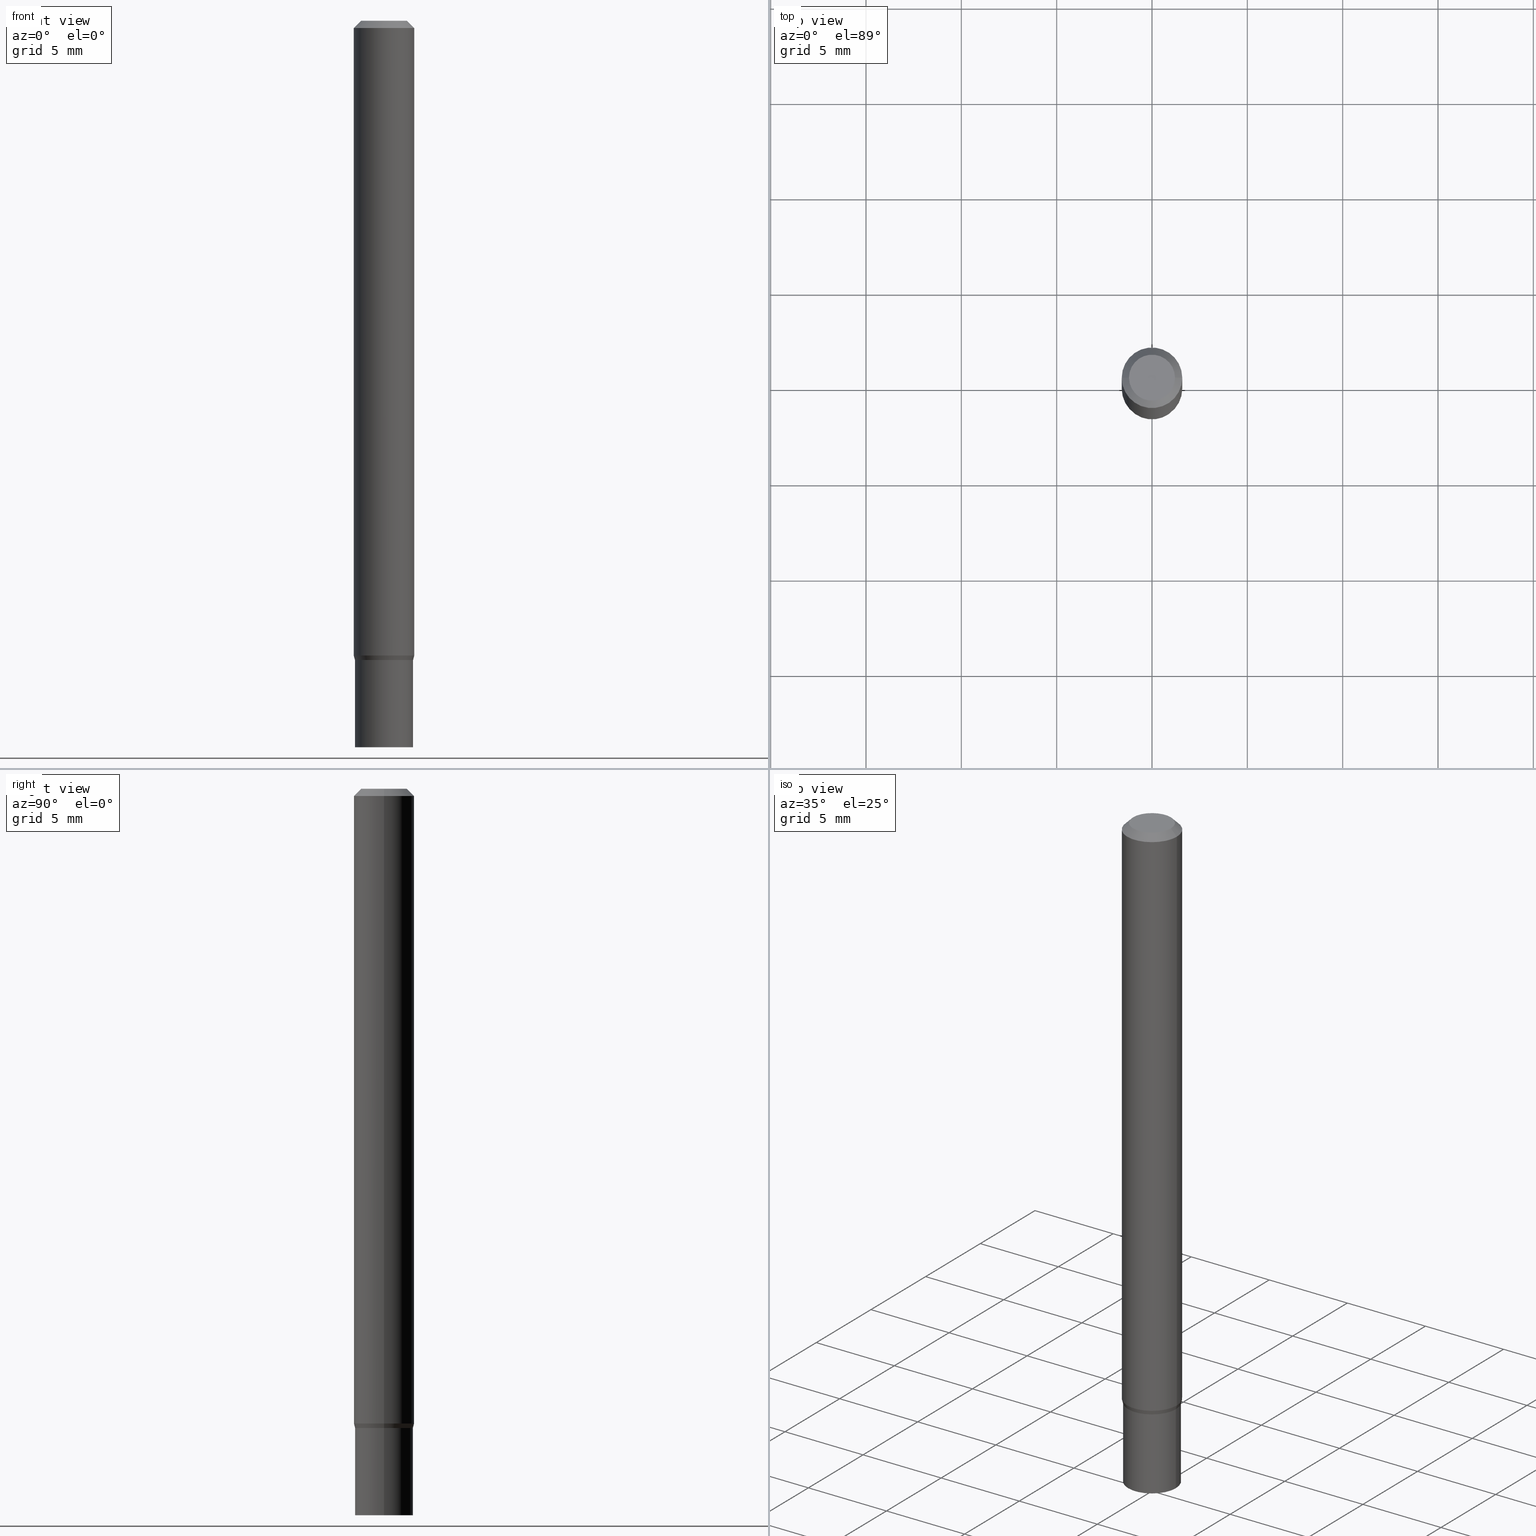
[diagram: canonical four-view strip — front | top / right | iso, engineering-drawing reading convention]
A machine part, canonical four-view strip (front | top / right | iso — engineering-drawing reading convention). The complete STEP part file that produces these views, byte-faithful:
ISO-10303-21;
HEADER;
FILE_DESCRIPTION (( 'STEP AP203' ),
    '1' );
FILE_NAME ('04110.STEP',
    '2024-03-14T17:00:56',
    ( '' ),
    ( '' ),
    'SwSTEP 2.0',
    'SolidWorks 2023',
    '' );
FILE_SCHEMA (( 'CONFIG_CONTROL_DESIGN' ));
ENDSEC;

DATA;
#1 = CARTESIAN_POINT ( 'NONE',  ( 0.05999999999999999778, -4.189777606611760421E-16, 2.925706065477561756E-30 ) ) ;
#2 = EDGE_LOOP ( 'NONE', ( #299, #328, #148, #464 ) ) ;
#3 = AXIS2_PLACEMENT_3D ( 'NONE', #29, #356, #354 ) ;
#4 = DIRECTION ( 'NONE',  ( 1.000000000000000000, -6.982962677686259611E-15, 0.000000000000000000 ) ) ;
#5 = ORIENTED_EDGE ( 'NONE', *, *, #355, .F. ) ;
#6 = EDGE_CURVE ( 'NONE', #403, #44, #155, .T. ) ;
#7 = EDGE_LOOP ( 'NONE', ( #180, #454, #118, #315 ) ) ;
#8 = PERSON_AND_ORGANIZATION ( #447, #16 ) ;
#9 = DIRECTION ( 'NONE',  ( 1.000000000000000000, -6.982962677686268288E-15, 0.000000000000000000 ) ) ;
#10 = AXIS2_PLACEMENT_3D ( 'NONE', #438, #114, #263 ) ;
#11 = ADVANCED_FACE ( 'NONE', ( #152 ), #188, .T. ) ;
#12 = AXIS2_PLACEMENT_3D ( 'NONE', #340, #301, #154 ) ;
#13 = ORIENTED_EDGE ( 'NONE', *, *, #329, .F. ) ;
#14 = COORDINATED_UNIVERSAL_TIME_OFFSET ( 5, 0, .BEHIND. ) ;
#15 = LINE ( 'NONE', #320, #352 ) ;
#16 = ORGANIZATION ( 'UNSPECIFIED', 'UNSPECIFIED', '' ) ;
#17 = CARTESIAN_POINT ( 'NONE',  ( 0.05999999999999999778, -5.656199768925894810E-15, -1.500000000000000222 ) ) ;
#18 = VECTOR ( 'NONE', #25, 39.37007874015748854 ) ;
#19 = LINE ( 'NONE', #126, #18 ) ;
#20 = ORIENTED_EDGE ( 'NONE', *, *, #359, .T. ) ;
#21 = DATE_AND_TIME ( #240, #74 ) ;
#22 = DIRECTION ( 'NONE',  ( 1.000000000000000000, -6.982962677686268288E-15, 0.000000000000000000 ) ) ;
#23 = AXIS2_PLACEMENT_3D ( 'NONE', #431, #116, #113 ) ;
#24 = EDGE_LOOP ( 'NONE', ( #434, #420, #392, #435 ) ) ;
#25 = DIRECTION ( 'NONE',  ( -0.7071067811869518049, 7.493145998871813553E-15, 0.7071067811861430075 ) ) ;
#26 = EDGE_LOOP ( 'NONE', ( #38, #369, #83, #242 ) ) ;
#27 = EDGE_CURVE ( 'NONE', #217, #466, #271, .T. ) ;
#28 = FACE_OUTER_BOUND ( 'NONE', #26, .T. ) ;
#29 = CARTESIAN_POINT ( 'NONE',  ( 3.668203209277705088E-31, -5.237222008264718399E-17, -0.01499999999999999944 ) ) ;
#30 = FACE_OUTER_BOUND ( 'NONE', #41, .T. ) ;
#31 = ADVANCED_FACE ( 'NONE', ( #189 ), #296, .F. ) ;
#32 = DIRECTION ( 'NONE',  ( 0.7071067811869518049, -2.468850131086492060E-15, 0.7071067811861430075 ) ) ;
#33 = ORIENTED_EDGE ( 'NONE', *, *, #139, .T. ) ;
#34 = CARTESIAN_POINT ( 'NONE',  ( 0.000000000000000000, 0.000000000000000000, 0.000000000000000000 ) ) ;
#35 = ORIENTED_EDGE ( 'NONE', *, *, #159, .T. ) ;
#36 = ORIENTED_EDGE ( 'NONE', *, *, #219, .T. ) ;
#37 = APPROVAL_ROLE ( '' ) ;
#38 = ORIENTED_EDGE ( 'NONE', *, *, #64, .F. ) ;
#39 = VECTOR ( 'NONE', #411, 39.37007874015748143 ) ;
#40 = CARTESIAN_POINT ( 'NONE',  ( -0.05949999999999999734, -4.183333212321580856E-15, -1.319999999999999840 ) ) ;
#41 = EDGE_LOOP ( 'NONE', ( #290, #451 ) ) ;
#42 = CARTESIAN_POINT ( 'NONE',  ( -0.05999999999999999778, 4.263256414560600957E-16, -2.951361054152943413E-30 ) ) ;
#43 = AXIS2_PLACEMENT_3D ( 'NONE', #362, #111, #334 ) ;
#44 = VERTEX_POINT ( 'NONE', #218 ) ;
#45 = EDGE_CURVE ( 'NONE', #279, #430, #388, .T. ) ;
#46 = DIRECTION ( 'NONE',  ( -2.445468806185136597E-29, 3.491481338843145583E-15, 1.000000000000000000 ) ) ;
#47 = AXIS2_PLACEMENT_3D ( 'NONE', #378, #200, #345 ) ;
#48 = CALENDAR_DATE ( 2024, 14, 3 ) ;
#49 = DIRECTION ( 'NONE',  ( -2.445468806185136597E-29, 3.491481338843145583E-15, 1.000000000000000000 ) ) ;
#50 = CYLINDRICAL_SURFACE ( 'NONE', #294, 0.06250000000000000000 ) ;
#51 = LOCAL_TIME ( 13, 0, 56.00000000000000000, #14 ) ;
#52 = ADVANCED_FACE ( 'NONE', ( #405 ), #85, .T. ) ;
#53 = DIRECTION ( 'NONE',  ( -2.445468806185136597E-29, 3.491481338843145583E-15, 1.000000000000000000 ) ) ;
#54 = VECTOR ( 'NONE', #32, 39.37007874015748854 ) ;
#55 = PERSON_AND_ORGANIZATION ( #447, #16 ) ;
#56 = DIRECTION ( 'NONE',  ( 1.000000000000000000, -6.982962677686261189E-15, 0.000000000000000000 ) ) ;
#57 = ORIENTED_EDGE ( 'NONE', *, *, #343, .F. ) ;
#58 = CARTESIAN_POINT ( 'NONE',  ( -0.05999999999999993533, -4.182429725816892736E-15, -1.320000000000000062 ) ) ;
#59 = EDGE_CURVE ( 'NONE', #363, #117, #364, .T. ) ;
#60 = ORIENTED_EDGE ( 'NONE', *, *, #121, .F. ) ;
#61 = CARTESIAN_POINT ( 'NONE',  ( 0.06250000000000000000, -5.012614570252739972E-15, -1.310669872981077733 ) ) ;
#62 = AXIS2_PLACEMENT_3D ( 'NONE', #274, #280, #232 ) ;
#63 = CARTESIAN_POINT ( 'NONE',  ( 0.000000000000000000, 0.000000000000000000, 0.000000000000000000 ) ) ;
#64 = EDGE_CURVE ( 'NONE', #44, #337, #440, .T. ) ;
#65 = CARTESIAN_POINT ( 'NONE',  ( 3.228018824164380442E-29, -4.608755367272952437E-15, -1.320000000000000062 ) ) ;
#66 = DIRECTION ( 'NONE',  ( -2.445468806185136597E-29, 3.491481338843145583E-15, 1.000000000000000000 ) ) ;
#67 = ORIENTED_EDGE ( 'NONE', *, *, #121, .T. ) ;
#68 = DIRECTION ( 'NONE',  ( 1.000000000000000000, -6.982962677686266711E-15, 0.000000000000000000 ) ) ;
#69 = AXIS2_PLACEMENT_3D ( 'NONE', #376, #199, #170 ) ;
#70 = ORIENTED_EDGE ( 'NONE', *, *, #407, .F. ) ;
#71 = ORIENTED_EDGE ( 'NONE', *, *, #423, .F. ) ;
#72 = CC_DESIGN_APPROVAL ( #452, ( #398 ) ) ;
#73 = EDGE_CURVE ( 'NONE', #337, #361, #214, .T. ) ;
#74 = LOCAL_TIME ( 13, 0, 56.00000000000000000, #198 ) ;
#75 = CARTESIAN_POINT ( 'NONE',  ( 0.000000000000000000, 0.000000000000000000, 0.000000000000000000 ) ) ;
#76 = DIRECTION ( 'NONE',  ( -2.438088387897960049E-29, 3.491481338843145188E-15, 1.000000000000000000 ) ) ;
#77 = DIRECTION ( 'NONE',  ( -2.445468806185136877E-29, 3.491481338843145188E-15, 1.000000000000000000 ) ) ;
#78 = DIRECTION ( 'NONE',  ( 1.000000000000000000, -6.982962677686259611E-15, 0.000000000000000000 ) ) ;
#79 = CALENDAR_DATE ( 2024, 14, 3 ) ;
#80 = CC_DESIGN_PERSON_AND_ORGANIZATION_ASSIGNMENT ( #55, #86, ( #98 ) ) ;
#81 = ORIENTED_EDGE ( 'NONE', *, *, #412, .F. ) ;
#82 = ADVANCED_BREP_SHAPE_REPRESENTATION ( '04110', ( #264, #426, #158 ), #443 ) ;
#83 = ORIENTED_EDGE ( 'NONE', *, *, #149, .T. ) ;
#84 = EDGE_LOOP ( 'NONE', ( #253, #71 ) ) ;
#85 = CONICAL_SURFACE ( 'NONE', #12, 0.05999999999999993533, 0.2617993877991513507 ) ;
#86 = PERSON_AND_ORGANIZATION_ROLE ( 'design_supplier' ) ;
#87 = DIRECTION ( 'NONE',  ( -2.445468806185136597E-29, 3.491481338843145583E-15, 1.000000000000000000 ) ) ;
#88 = EDGE_CURVE ( 'NONE', #44, #403, #324, .T. ) ;
#89 = FACE_OUTER_BOUND ( 'NONE', #166, .T. ) ;
#90 = APPROVAL_PERSON_ORGANIZATION ( #8, #313, #441 ) ;
#91 = PERSON_AND_ORGANIZATION_ROLE ( 'creator' ) ;
#92 = CYLINDRICAL_SURFACE ( 'NONE', #145, 0.05999999999999999778 ) ;
#93 = ORIENTED_EDGE ( 'NONE', *, *, #95, .T. ) ;
#94 = CARTESIAN_POINT ( 'NONE',  ( 3.226796089761288762E-29, -4.607009626603530934E-15, -1.319500000000000117 ) ) ;
#95 = EDGE_CURVE ( 'NONE', #96, #266, #417, .T. ) ;
#96 = VERTEX_POINT ( 'NONE', #317 ) ;
#97 = CARTESIAN_POINT ( 'NONE',  ( -0.06000000000000019901, -4.180683985147469655E-15, -1.319500000000000117 ) ) ;
#98 = PRODUCT_DEFINITION_FORMATION_WITH_SPECIFIED_SOURCE ( 'ANY', '', #190, .NOT_KNOWN. ) ;
#99 = CYLINDRICAL_SURFACE ( 'NONE', #254, 0.05999999999999999778 ) ;
#100 = CLOSED_SHELL ( 'NONE', ( #257, #209, #11, #202, #52, #302, #248, #273, #297, #31, #428, #395 ) ) ;
#101 = CYLINDRICAL_SURFACE ( 'NONE', #208, 0.06250000000000000000 ) ;
#102 = DIRECTION ( 'NONE',  ( 1.000000000000000000, -6.982962677686259611E-15, 0.000000000000000000 ) ) ;
#103 = DIRECTION ( 'NONE',  ( -2.445468806185136597E-29, 3.491481338843145583E-15, 1.000000000000000000 ) ) ;
#104 = ORIENTED_EDGE ( 'NONE', *, *, #329, .T. ) ;
#105 = DIRECTION ( 'NONE',  ( -2.445468806185136597E-29, 3.491481338843145583E-15, 1.000000000000000000 ) ) ;
#106 = AXIS2_PLACEMENT_3D ( 'NONE', #465, #245, #144 ) ;
#107 = ORIENTED_EDGE ( 'NONE', *, *, #182, .F. ) ;
#108 = EDGE_CURVE ( 'NONE', #130, #196, #163, .T. ) ;
#109 = PERSON_AND_ORGANIZATION_ROLE ( 'design_owner' ) ;
#110 = DIRECTION ( 'NONE',  ( -2.445468806185136597E-29, 3.491481338843145583E-15, 1.000000000000000000 ) ) ;
#111 = DIRECTION ( 'NONE',  ( -2.445468806185136597E-29, 3.491481338843145583E-15, 1.000000000000000000 ) ) ;
#112 = DIRECTION ( 'NONE',  ( -2.445468806185136597E-29, 3.491481338843145583E-15, 1.000000000000000000 ) ) ;
#113 = DIRECTION ( 'NONE',  ( 1.000000000000000000, -6.982962677686261189E-15, 0.000000000000000000 ) ) ;
#114 = DIRECTION ( 'NONE',  ( -2.445468806185136597E-29, 3.491481338843145583E-15, 1.000000000000000000 ) ) ;
#115 = CONICAL_SURFACE ( 'NONE', #238, 0.05999999999999993533, 0.2617993877991513507 ) ;
#116 = DIRECTION ( 'NONE',  ( -2.445468806185136597E-29, 3.491481338843145583E-15, 1.000000000000000000 ) ) ;
#117 = VERTEX_POINT ( 'NONE', #344 ) ;
#118 = ORIENTED_EDGE ( 'NONE', *, *, #459, .T. ) ;
#119 = PERSON_AND_ORGANIZATION ( #447, #16 ) ;
#120 = DIRECTION ( 'NONE',  ( 1.000000000000000000, -6.982962677686259611E-15, 0.000000000000000000 ) ) ;
#121 = EDGE_CURVE ( 'NONE', #266, #96, #278, .T. ) ;
#122 = AXIS2_PLACEMENT_3D ( 'NONE', #204, #49, #120 ) ;
#123 = APPROVAL_DATE_TIME ( #21, #313 ) ;
#124 = FACE_OUTER_BOUND ( 'NONE', #269, .T. ) ;
#125 = DATE_TIME_ROLE ( 'classification_date' ) ;
#126 = CARTESIAN_POINT ( 'NONE',  ( -0.05949999999999999734, -4.185982439495692057E-15, -1.319999999999999840 ) ) ;
#127 = EDGE_LOOP ( 'NONE', ( #93, #67 ) ) ;
#128 = APPROVAL_STATUS ( 'not_yet_approved' ) ;
#129 = LINE ( 'NONE', #132, #39 ) ;
#130 = VERTEX_POINT ( 'NONE', #444 ) ;
#131 = AXIS2_PLACEMENT_3D ( 'NONE', #94, #87, #56 ) ;
#132 = CARTESIAN_POINT ( 'NONE',  ( 0.06250000000000000000, -4.364351673553916694E-16, 3.047610484872459871E-30 ) ) ;
#133 = CIRCLE ( 'NONE', #223, 0.06250000000000000000 ) ;
#134 = EDGE_LOOP ( 'NONE', ( #60, #20, #333, #239 ) ) ;
#135 = AXIS2_PLACEMENT_3D ( 'NONE', #63, #210, #353 ) ;
#136 = DIRECTION ( 'NONE',  ( 1.000000000000000000, -6.982962677686265922E-15, 4.876176775795935793E-29 ) ) ;
#137 = CC_DESIGN_APPROVAL ( #313, ( #98 ) ) ;
#138 = LINE ( 'NONE', #424, #410 ) ;
#139 = EDGE_CURVE ( 'NONE', #466, #217, #433, .T. ) ;
#140 = AXIS2_PLACEMENT_3D ( 'NONE', #289, #288, #327 ) ;
#141 = CARTESIAN_POINT ( 'NONE',  ( 0.06000000000000019901, -5.025987387264708356E-15, -1.319500000000000117 ) ) ;
#142 = CARTESIAN_POINT ( 'NONE',  ( 0.04749999999999999362, -4.035134999187581581E-16, -1.989643822619502098E-16 ) ) ;
#143 = EDGE_CURVE ( 'NONE', #96, #117, #15, .T. ) ;
#144 = DIRECTION ( 'NONE',  ( 1.000000000000000000, -6.982962677686266711E-15, 4.876176775795935232E-29 ) ) ;
#145 = AXIS2_PLACEMENT_3D ( 'NONE', #237, #311, #448 ) ;
#146 = CARTESIAN_POINT ( 'NONE',  ( 3.668203209277705088E-31, -5.237222008264718399E-17, -0.01499999999999999944 ) ) ;
#147 = APPLICATION_PROTOCOL_DEFINITION ( 'international standard', 'config_control_design', 1994, #402 ) ;
#148 = ORIENTED_EDGE ( 'NONE', *, *, #175, .F. ) ;
#149 = EDGE_CURVE ( 'NONE', #403, #361, #314, .T. ) ;
#150 = UNCERTAINTY_MEASURE_WITH_UNIT (LENGTH_MEASURE( 1.000000000000000082E-05 ), #437, 'distance_accuracy_value', 'NONE');
#151 = CALENDAR_DATE ( 2024, 14, 3 ) ;
#152 = FACE_OUTER_BOUND ( 'NONE', #134, .T. ) ;
#153 = FACE_OUTER_BOUND ( 'NONE', #326, .T. ) ;
#154 = DIRECTION ( 'NONE',  ( 1.000000000000000000, -6.982962677686259611E-15, 0.000000000000000000 ) ) ;
#155 = CIRCLE ( 'NONE', #425, 0.05999999999999993533 ) ;
#156 = COORDINATED_UNIVERSAL_TIME_OFFSET ( 5, 0, .BEHIND. ) ;
#157 = DIRECTION ( 'NONE',  ( 2.445468806185136597E-29, -3.491481338843145583E-15, -1.000000000000000000 ) ) ;
#158 = AXIS2_PLACEMENT_3D ( 'NONE', #75, #396, #365 ) ;
#159 = EDGE_CURVE ( 'NONE', #361, #363, #129, .T. ) ;
#160 = LINE ( 'NONE', #310, #338 ) ;
#161 = APPROVAL_DATE_TIME ( #276, #452 ) ;
#162 = DIRECTION ( 'NONE',  ( -0.7071067811865522357, 2.468850131082306364E-15, -0.7071067811865427988 ) ) ;
#163 = CIRCLE ( 'NONE', #221, 0.05999999999999999778 ) ;
#164 = DIRECTION ( 'NONE',  ( 1.000000000000000000, -6.982962677686262766E-15, 0.000000000000000000 ) ) ;
#165 = APPROVAL ( #255, 'UNSPECIFIED' ) ;
#166 = EDGE_LOOP ( 'NONE', ( #293, #36, #406, #13 ) ) ;
#167 = COORDINATED_UNIVERSAL_TIME_OFFSET ( 5, 0, .BEHIND. ) ;
#168 = DIRECTION ( 'NONE',  ( 1.000000000000000000, -6.982962677686267499E-15, 4.852736867747366768E-29 ) ) ;
#169 = ORIENTED_EDGE ( 'NONE', *, *, #108, .F. ) ;
#170 = DIRECTION ( 'NONE',  ( 1.000000000000000000, -6.982962677686267499E-15, 4.852736867747366768E-29 ) ) ;
#171 = AXIS2_PLACEMENT_3D ( 'NONE', #222, #46, #225 ) ;
#172 = CARTESIAN_POINT ( 'NONE',  ( 0.06250000000000000000, -4.888073874380388472E-16, -0.01499999999999999944 ) ) ;
#173 = DIMENSIONAL_EXPONENTS ( 1.000000000000000000, 0.000000000000000000, 0.000000000000000000, 0.000000000000000000, 0.000000000000000000, 0.000000000000000000, 0.000000000000000000 ) ;
#174 = DIRECTION ( 'NONE',  ( 0.7071067811865522357, -7.319954787623271823E-15, -0.7071067811865427988 ) ) ;
#175 = EDGE_CURVE ( 'NONE', #361, #337, #357, .T. ) ;
#176 = APPROVAL_PERSON_ORGANIZATION ( #119, #452, #234 ) ;
#177 = DIRECTION ( 'NONE',  ( 1.000000000000000000, -6.982962677686266711E-15, 4.876176775795935793E-29 ) ) ;
#178 = CONICAL_SURFACE ( 'NONE', #3, 0.06250000000000000000, 0.7853981633974549403 ) ;
#179 = CARTESIAN_POINT ( 'NONE',  ( 4.189777606612082375E-16, 0.05999999999999539035, -1.320000000000000506 ) ) ;
#180 = ORIENTED_EDGE ( 'NONE', *, *, #88, .F. ) ;
#181 = APPLICATION_CONTEXT ( 'configuration controlled 3d designs of mechanical parts and assemblies' ) ;
#182 = EDGE_CURVE ( 'NONE', #44, #348, #160, .T. ) ;
#183 = PLANE ( 'NONE',  #140 ) ;
#184 = ORIENTED_EDGE ( 'NONE', *, *, #139, .F. ) ;
#185 =( NAMED_UNIT ( * ) SI_UNIT ( $, .STERADIAN. ) SOLID_ANGLE_UNIT ( ) );
#186 = ORIENTED_EDGE ( 'NONE', *, *, #459, .F. ) ;
#187 = LINE ( 'NONE', #1, #316 ) ;
#188 = CONICAL_SURFACE ( 'NONE', #455, 0.06250000000000000000, 0.7853981633974549403 ) ;
#189 = FACE_OUTER_BOUND ( 'NONE', #84, .T. ) ;
#190 = PRODUCT ( '04110', '04110', '', ( #339 ) ) ;
#191 = DIRECTION ( 'NONE',  ( 1.000000000000000000, -6.982962677686265922E-15, 4.876176775795935793E-29 ) ) ;
#192 = EDGE_CURVE ( 'NONE', #403, #282, #270, .T. ) ;
#193 = CARTESIAN_POINT ( 'NONE',  ( 3.228018824164379882E-29, -4.608755367272951648E-15, -1.319999999999999840 ) ) ;
#194 = DIRECTION ( 'NONE',  ( -1.000000000000000000, 6.982962677686266711E-15, 0.000000000000000000 ) ) ;
#195 = APPLICATION_PROTOCOL_DEFINITION ( 'international standard', 'config_control_design', 1994, #181 ) ;
#196 = VERTEX_POINT ( 'NONE', #450 ) ;
#197 = EDGE_CURVE ( 'NONE', #282, #348, #312, .T. ) ;
#198 = COORDINATED_UNIVERSAL_TIME_OFFSET ( 5, 0, .BEHIND. ) ;
#199 = DIRECTION ( 'NONE',  ( -2.445468806185136597E-29, 3.491481338843145583E-15, 1.000000000000000000 ) ) ;
#200 = DIRECTION ( 'NONE',  ( -2.445468806185136597E-29, 3.491481338843145583E-15, 1.000000000000000000 ) ) ;
#201 = DIRECTION ( 'NONE',  ( -2.445468806185136877E-29, 3.491481338843145188E-15, 1.000000000000000000 ) ) ;
#202 = ADVANCED_FACE ( 'NONE', ( #241 ), #50, .T. ) ;
#203 = AXIS2_PLACEMENT_3D ( 'NONE', #193, #105, #4 ) ;
#204 = CARTESIAN_POINT ( 'NONE',  ( 3.228018824164380442E-29, -4.608755367272952437E-15, -1.320000000000000062 ) ) ;
#205 = DIRECTION ( 'NONE',  ( -2.445468806185136597E-29, 3.491481338843145583E-15, 1.000000000000000000 ) ) ;
#206 = ORIENTED_EDGE ( 'NONE', *, *, #27, .F. ) ;
#207 = CYLINDRICAL_SURFACE ( 'NONE', #106, 0.06000000000000006023 ) ;
#208 = AXIS2_PLACEMENT_3D ( 'NONE', #211, #323, #177 ) ;
#209 = ADVANCED_FACE ( 'NONE', ( #89 ), #287, .T. ) ;
#210 = DIRECTION ( 'NONE',  ( -2.445468806185136597E-29, 3.491481338843145583E-15, 1.000000000000000000 ) ) ;
#211 = CARTESIAN_POINT ( 'NONE',  ( 0.000000000000000000, 0.000000000000000000, 0.000000000000000000 ) ) ;
#212 = DIRECTION ( 'NONE',  ( 1.000000000000000000, -6.982962677686268288E-15, 0.000000000000000000 ) ) ;
#213 = EDGE_LOOP ( 'NONE', ( #70, #228, #35, #5 ) ) ;
#214 = CIRCLE ( 'NONE', #331, 0.06250000000000000000 ) ;
#215 = AXIS2_PLACEMENT_3D ( 'NONE', #372, #110, #9 ) ;
#216 = DIRECTION ( 'NONE',  ( -2.445468806185136597E-29, 3.491481338843145583E-15, 1.000000000000000000 ) ) ;
#217 = VERTEX_POINT ( 'NONE', #17 ) ;
#218 = CARTESIAN_POINT ( 'NONE',  ( -0.05999999999999993533, -4.157259959432089605E-15, -1.320000000000000062 ) ) ;
#219 = EDGE_CURVE ( 'NONE', #430, #348, #19, .T. ) ;
#220 = PERSON_AND_ORGANIZATION ( #447, #16 ) ;
#221 = AXIS2_PLACEMENT_3D ( 'NONE', #456, #374, #342 ) ;
#222 = CARTESIAN_POINT ( 'NONE',  ( 3.228018824164379882E-29, -4.608755367272951648E-15, -1.319999999999999840 ) ) ;
#223 = AXIS2_PLACEMENT_3D ( 'NONE', #252, #216, #68 ) ;
#224 = DATE_TIME_ROLE ( 'creation_date' ) ;
#225 = DIRECTION ( 'NONE',  ( 1.000000000000000000, -6.982962677686259611E-15, 0.000000000000000000 ) ) ;
#226 = CIRCLE ( 'NONE', #23, 0.06000000000000019901 ) ;
#227 = LENGTH_MEASURE_WITH_UNIT ( LENGTH_MEASURE( 0.02539999999999999897 ), #332 );
#228 = ORIENTED_EDGE ( 'NONE', *, *, #73, .T. ) ;
#229 = CC_DESIGN_PERSON_AND_ORGANIZATION_ASSIGNMENT ( #303, #401, ( #286 ) ) ;
#230 = SECURITY_CLASSIFICATION_LEVEL ( 'unclassified' ) ;
#231 = CARTESIAN_POINT ( 'NONE',  ( 3.205202289581861151E-29, -4.576179402897349091E-15, -1.310669872981077733 ) ) ;
#232 = DIRECTION ( 'NONE',  ( 1.000000000000000000, -6.982962677686262766E-15, 0.000000000000000000 ) ) ;
#233 = ADVANCED_FACE ( 'NONE', ( #413 ), #92, .T. ) ;
#234 = APPROVAL_ROLE ( '' ) ;
#235 = DIRECTION ( 'NONE',  ( 0.2588190451025225713, 1.565188264969611712E-15, 0.9659258262890676461 ) ) ;
#236 = PERSON_AND_ORGANIZATION ( #447, #16 ) ;
#237 = CARTESIAN_POINT ( 'NONE',  ( 0.000000000000000000, 0.000000000000000000, 0.000000000000000000 ) ) ;
#238 = AXIS2_PLACEMENT_3D ( 'NONE', #285, #103, #102 ) ;
#239 = ORIENTED_EDGE ( 'NONE', *, *, #143, .F. ) ;
#240 = CALENDAR_DATE ( 2024, 14, 3 ) ;
#241 = FACE_OUTER_BOUND ( 'NONE', #418, .T. ) ;
#242 = ORIENTED_EDGE ( 'NONE', *, *, #73, .F. ) ;
#243 = FACE_OUTER_BOUND ( 'NONE', #213, .T. ) ;
#244 = ADVANCED_FACE ( 'NONE', ( #124 ), #99, .T. ) ;
#245 = DIRECTION ( 'NONE',  ( -2.445468806185136597E-29, 3.491481338843145583E-15, 1.000000000000000000 ) ) ;
#246 = AXIS2_PLACEMENT_3D ( 'NONE', #453, #53, #22 ) ;
#247 = FACE_OUTER_BOUND ( 'NONE', #24, .T. ) ;
#248 = ADVANCED_FACE ( 'NONE', ( #243 ), #101, .T. ) ;
#249 = DIRECTION ( 'NONE',  ( -1.000000000000000000, 6.982962677686265922E-15, -4.876176775795935793E-29 ) ) ;
#250 = ORIENTED_EDGE ( 'NONE', *, *, #219, .F. ) ;
#251 = CONICAL_SURFACE ( 'NONE', #43, 0.05949999999999999734, 0.7853981633980202659 ) ;
#252 = CARTESIAN_POINT ( 'NONE',  ( 3.668203209277705088E-31, -5.237222008264718399E-17, -0.01499999999999999944 ) ) ;
#253 = ORIENTED_EDGE ( 'NONE', *, *, #45, .F. ) ;
#254 = AXIS2_PLACEMENT_3D ( 'NONE', #34, #358, #325 ) ;
#255 = APPROVAL_STATUS ( 'not_yet_approved' ) ;
#256 = EDGE_LOOP ( 'NONE', ( #107, #442, #367, #399 ) ) ;
#257 = ADVANCED_FACE ( 'NONE', ( #463 ), #207, .F. ) ;
#258 = LOCAL_TIME ( 13, 0, 56.00000000000000000, #167 ) ;
#259 =( NAMED_UNIT ( * ) PLANE_ANGLE_UNIT ( ) SI_UNIT ( $, .RADIAN. ) );
#260 = ORIENTED_EDGE ( 'NONE', *, *, #449, .F. ) ;
#261 = APPROVAL_DATE_TIME ( #300, #165 ) ;
#262 = VECTOR ( 'NONE', #235, 39.37007874015748854 ) ;
#263 = DIRECTION ( 'NONE',  ( 1.000000000000000000, -6.982962677686266711E-15, 0.000000000000000000 ) ) ;
#264 = MANIFOLD_SOLID_BREP ( 'Body-Move/Copy2[1]', #400 ) ;
#265 = CC_DESIGN_PERSON_AND_ORGANIZATION_ASSIGNMENT ( #236, #383, ( #398 ) ) ;
#266 = VERTEX_POINT ( 'NONE', #142 ) ;
#267 = CC_DESIGN_APPROVAL ( #165, ( #286 ) ) ;
#268 = SHAPE_DEFINITION_REPRESENTATION ( #370, #82 ) ;
#269 = EDGE_LOOP ( 'NONE', ( #432, #318, #57, #260 ) ) ;
#270 = LINE ( 'NONE', #409, #373 ) ;
#271 = CIRCLE ( 'NONE', #215, 0.05999999999999999778 ) ;
#272 = DIRECTION ( 'NONE',  ( -0.2588190451025225713, 5.211531920934557353E-15, 0.9659258262890676461 ) ) ;
#273 = ADVANCED_FACE ( 'NONE', ( #247 ), #178, .T. ) ;
#274 = CARTESIAN_POINT ( 'NONE',  ( 3.205202289581861151E-29, -4.576179402897349091E-15, -1.310669872981077733 ) ) ;
#275 = ORIENTED_EDGE ( 'NONE', *, *, #159, .F. ) ;
#276 = DATE_AND_TIME ( #377, #51 ) ;
#277 = CARTESIAN_POINT ( 'NONE',  ( 0.05999999999999993533, -5.027733127934127493E-15, -1.320000000000000062 ) ) ;
#278 = CIRCLE ( 'NONE', #69, 0.04749999999999999362 ) ;
#279 = VERTEX_POINT ( 'NONE', #393 ) ;
#280 = DIRECTION ( 'NONE',  ( -2.445468806185136597E-29, 3.491481338843145583E-15, 1.000000000000000000 ) ) ;
#281 = ADVANCED_FACE ( 'NONE', ( #30 ), #427, .F. ) ;
#282 = VERTEX_POINT ( 'NONE', #141 ) ;
#283 = APPROVAL_PERSON_ORGANIZATION ( #220, #165, #37 ) ;
#284 = FACE_OUTER_BOUND ( 'NONE', #256, .T. ) ;
#285 = CARTESIAN_POINT ( 'NONE',  ( 3.228018824164380442E-29, -4.608755367272952437E-15, -1.320000000000000062 ) ) ;
#286 = PRODUCT_DEFINITION ( 'UNKNOWN', '', #98, #445 ) ;
#287 = CONICAL_SURFACE ( 'NONE', #47, 0.05949999999999999734, 0.7853981633980202659 ) ;
#288 = DIRECTION ( 'NONE',  ( 2.438088387897960049E-29, -3.491481338843145188E-15, -1.000000000000000000 ) ) ;
#289 = CARTESIAN_POINT ( 'NONE',  ( 3.316907271900976096E-16, 0.04749999999999999362, -2.653275547260257586E-16 ) ) ;
#290 = ORIENTED_EDGE ( 'NONE', *, *, #343, .T. ) ;
#291 = LOCAL_TIME ( 13, 0, 56.00000000000000000, #298 ) ;
#292 = CARTESIAN_POINT ( 'NONE',  ( 0.05949999999999999734, -5.024241646595283697E-15, -1.319999999999999840 ) ) ;
#293 = ORIENTED_EDGE ( 'NONE', *, *, #45, .T. ) ;
#294 = AXIS2_PLACEMENT_3D ( 'NONE', #384, #379, #349 ) ;
#295 = PERSON_AND_ORGANIZATION ( #447, #16 ) ;
#296 = PLANE ( 'NONE',  #408 ) ;
#297 = ADVANCED_FACE ( 'NONE', ( #390 ), #183, .F. ) ;
#298 = COORDINATED_UNIVERSAL_TIME_OFFSET ( 5, 0, .BEHIND. ) ;
#299 = ORIENTED_EDGE ( 'NONE', *, *, #6, .T. ) ;
#300 = DATE_AND_TIME ( #151, #291 ) ;
#301 = DIRECTION ( 'NONE',  ( -2.445468806185136597E-29, 3.491481338843145583E-15, 1.000000000000000000 ) ) ;
#302 = ADVANCED_FACE ( 'NONE', ( #28 ), #115, .T. ) ;
#303 = PERSON_AND_ORGANIZATION ( #447, #16 ) ;
#304 = CIRCLE ( 'NONE', #457, 0.05999999999999999778 ) ;
#305 = EDGE_LOOP ( 'NONE', ( #81, #33, #385, #169 ) ) ;
#306 = AXIS2_PLACEMENT_3D ( 'NONE', #422, #458, #136 ) ;
#307 = ORIENTED_EDGE ( 'NONE', *, *, #423, .T. ) ;
#308 = LOCAL_TIME ( 13, 0, 56.00000000000000000, #156 ) ;
#309 = VECTOR ( 'NONE', #360, 39.37007874015748143 ) ;
#310 = CARTESIAN_POINT ( 'NONE',  ( -0.06000000000000006023, 4.263256414560605395E-16, -2.951361054152946216E-30 ) ) ;
#311 = DIRECTION ( 'NONE',  ( -2.445468806185136597E-29, 3.491481338843145583E-15, 1.000000000000000000 ) ) ;
#312 = CIRCLE ( 'NONE', #131, 0.06000000000000019901 ) ;
#313 = APPROVAL ( #439, 'UNSPECIFIED' ) ;
#314 = LINE ( 'NONE', #277, #262 ) ;
#315 = ORIENTED_EDGE ( 'NONE', *, *, #192, .F. ) ;
#316 = VECTOR ( 'NONE', #404, 39.37007874015748143 ) ;
#317 = CARTESIAN_POINT ( 'NONE',  ( -0.04749999999999999362, 3.578768372314206562E-16, -1.989643822619551895E-16 ) ) ;
#318 = ORIENTED_EDGE ( 'NONE', *, *, #412, .T. ) ;
#319 = CC_DESIGN_DATE_AND_TIME_ASSIGNMENT ( #414, #125, ( #398 ) ) ;
#320 = CARTESIAN_POINT ( 'NONE',  ( -0.06250000000000000000, 3.840629472727444916E-16, -0.01499999999999999944 ) ) ;
#321 = FACE_OUTER_BOUND ( 'NONE', #394, .T. ) ;
#322 = PLANE ( 'NONE',  #306 ) ;
#323 = DIRECTION ( 'NONE',  ( -2.445468806185136597E-29, 3.491481338843145583E-15, 1.000000000000000000 ) ) ;
#324 = CIRCLE ( 'NONE', #122, 0.05999999999999993533 ) ;
#325 = DIRECTION ( 'NONE',  ( 1.000000000000000000, -6.982962677686267499E-15, 4.876176775795936353E-29 ) ) ;
#326 = EDGE_LOOP ( 'NONE', ( #250, #307, #104, #186 ) ) ;
#327 = DIRECTION ( 'NONE',  ( -1.000000000000000000, 6.982962677686265922E-15, -4.876176775795935793E-29 ) ) ;
#328 = ORIENTED_EDGE ( 'NONE', *, *, #64, .T. ) ;
#329 = EDGE_CURVE ( 'NONE', #279, #282, #391, .T. ) ;
#330 = ORIENTED_EDGE ( 'NONE', *, *, #407, .T. ) ;
#331 = AXIS2_PLACEMENT_3D ( 'NONE', #231, #205, #164 ) ;
#332 =( LENGTH_UNIT ( ) NAMED_UNIT ( * ) SI_UNIT ( $, .METRE. ) );
#333 = ORIENTED_EDGE ( 'NONE', *, *, #59, .T. ) ;
#334 = DIRECTION ( 'NONE',  ( 1.000000000000000000, -6.982962677686259611E-15, 0.000000000000000000 ) ) ;
#335 = CARTESIAN_POINT ( 'NONE',  ( 3.228018824164380442E-29, -4.608755367272952437E-15, -1.320000000000000062 ) ) ;
#336 = DATE_AND_TIME ( #79, #308 ) ;
#337 = VERTEX_POINT ( 'NONE', #429 ) ;
#338 = VECTOR ( 'NONE', #201, 39.37007874015748143 ) ;
#339 = MECHANICAL_CONTEXT ( 'NONE', #402, 'mechanical' ) ;
#340 = CARTESIAN_POINT ( 'NONE',  ( 3.228018824164380442E-29, -4.608755367272952437E-15, -1.320000000000000062 ) ) ;
#341 = PERSON_AND_ORGANIZATION ( #447, #16 ) ;
#342 = DIRECTION ( 'NONE',  ( 1.000000000000000000, -6.982962677686268288E-15, 0.000000000000000000 ) ) ;
#343 = EDGE_CURVE ( 'NONE', #196, #130, #304, .T. ) ;
#344 = CARTESIAN_POINT ( 'NONE',  ( -0.06250000000000000000, -1.870186601639935272E-15, -0.01499999999999999944 ) ) ;
#345 = DIRECTION ( 'NONE',  ( 1.000000000000000000, -6.982962677686259611E-15, 0.000000000000000000 ) ) ;
#346 = AXIS2_PLACEMENT_3D ( 'NONE', #179, #461, #249 ) ;
#347 = CARTESIAN_POINT ( 'NONE',  ( 4.865611903635008365E-45, -6.946804277620623666E-31, -1.989643822619527736E-16 ) ) ;
#348 = VERTEX_POINT ( 'NONE', #97 ) ;
#349 = DIRECTION ( 'NONE',  ( 1.000000000000000000, -6.982962677686266711E-15, 4.876176775795935793E-29 ) ) ;
#350 = ORIENTED_EDGE ( 'NONE', *, *, #59, .F. ) ;
#351 = LINE ( 'NONE', #386, #462 ) ;
#352 = VECTOR ( 'NONE', #162, 39.37007874015748143 ) ;
#353 = DIRECTION ( 'NONE',  ( 1.000000000000000000, -6.982962677686266711E-15, 4.876176775795935232E-29 ) ) ;
#354 = DIRECTION ( 'NONE',  ( -1.000000000000000000, 6.982962677686266711E-15, 0.000000000000000000 ) ) ;
#355 = EDGE_CURVE ( 'NONE', #117, #363, #133, .T. ) ;
#356 = DIRECTION ( 'NONE',  ( 2.445468806185136597E-29, -3.491481338843145583E-15, -1.000000000000000000 ) ) ;
#357 = CIRCLE ( 'NONE', #62, 0.06250000000000000000 ) ;
#358 = DIRECTION ( 'NONE',  ( -2.445468806185136597E-29, 3.491481338843145583E-15, 1.000000000000000000 ) ) ;
#359 = EDGE_CURVE ( 'NONE', #266, #363, #351, .T. ) ;
#360 = DIRECTION ( 'NONE',  ( -2.445468806185136877E-29, 3.491481338843145188E-15, 1.000000000000000000 ) ) ;
#361 = VERTEX_POINT ( 'NONE', #61 ) ;
#362 = CARTESIAN_POINT ( 'NONE',  ( 3.228018824164379882E-29, -4.608755367272951648E-15, -1.319999999999999840 ) ) ;
#363 = VERTEX_POINT ( 'NONE', #172 ) ;
#364 = CIRCLE ( 'NONE', #10, 0.06250000000000000000 ) ;
#365 = DIRECTION ( 'NONE',  ( 1.000000000000000000, 0.000000000000000000, 0.000000000000000000 ) ) ;
#366 = ADVANCED_FACE ( 'NONE', ( #321 ), #322, .F. ) ;
#367 = ORIENTED_EDGE ( 'NONE', *, *, #192, .T. ) ;
#368 = LINE ( 'NONE', #42, #309 ) ;
#369 = ORIENTED_EDGE ( 'NONE', *, *, #88, .T. ) ;
#370 = PRODUCT_DEFINITION_SHAPE ( 'NONE', 'NONE',  #286 ) ;
#371 = CARTESIAN_POINT ( 'NONE',  ( -0.05999999999999999778, -4.496663046312775211E-15, -1.500000000000000222 ) ) ;
#372 = CARTESIAN_POINT ( 'NONE',  ( 3.668203209277704895E-29, -5.237222008264718177E-15, -1.500000000000000222 ) ) ;
#373 = VECTOR ( 'NONE', #416, 39.37007874015748143 ) ;
#374 = DIRECTION ( 'NONE',  ( -2.445468806185136597E-29, 3.491481338843145583E-15, 1.000000000000000000 ) ) ;
#375 = CC_DESIGN_DATE_AND_TIME_ASSIGNMENT ( #336, #224, ( #286 ) ) ;
#376 = CARTESIAN_POINT ( 'NONE',  ( 4.865611903635008365E-45, -6.946804277620623666E-31, -1.989643822619527736E-16 ) ) ;
#377 = CALENDAR_DATE ( 2024, 14, 3 ) ;
#378 = CARTESIAN_POINT ( 'NONE',  ( 3.228018824164379882E-29, -4.608755367272951648E-15, -1.319999999999999840 ) ) ;
#379 = DIRECTION ( 'NONE',  ( -2.445468806185136597E-29, 3.491481338843145583E-15, 1.000000000000000000 ) ) ;
#380 = AXIS2_PLACEMENT_3D ( 'NONE', #347, #419, #168 ) ;
#381 = ORIENTED_EDGE ( 'NONE', *, *, #175, .T. ) ;
#382 = CC_DESIGN_SECURITY_CLASSIFICATION ( #398, ( #98 ) ) ;
#383 = PERSON_AND_ORGANIZATION_ROLE ( 'classification_officer' ) ;
#384 = CARTESIAN_POINT ( 'NONE',  ( 0.000000000000000000, 0.000000000000000000, 0.000000000000000000 ) ) ;
#385 = ORIENTED_EDGE ( 'NONE', *, *, #449, .T. ) ;
#386 = CARTESIAN_POINT ( 'NONE',  ( 0.06250000000000000000, -4.811533449433679005E-16, -0.01499999999999999944 ) ) ;
#387 = CYLINDRICAL_SURFACE ( 'NONE', #135, 0.06000000000000006023 ) ;
#388 = CIRCLE ( 'NONE', #171, 0.05949999999999999734 ) ;
#389 = CC_DESIGN_PERSON_AND_ORGANIZATION_ASSIGNMENT ( #295, #109, ( #190 ) ) ;
#390 = FACE_OUTER_BOUND ( 'NONE', #127, .T. ) ;
#391 = LINE ( 'NONE', #292, #54 ) ;
#392 = ORIENTED_EDGE ( 'NONE', *, *, #143, .T. ) ;
#393 = CARTESIAN_POINT ( 'NONE',  ( 0.05949999999999999734, -5.024241646595283697E-15, -1.319999999999999840 ) ) ;
#394 = EDGE_LOOP ( 'NONE', ( #206, #184 ) ) ;
#395 = ADVANCED_FACE ( 'NONE', ( #284 ), #387, .F. ) ;
#396 = DIRECTION ( 'NONE',  ( 0.000000000000000000, 0.000000000000000000, 1.000000000000000000 ) ) ;
#397 = CARTESIAN_POINT ( 'NONE',  ( 3.228018824164380442E-29, -4.608755367272952437E-15, -1.320000000000000062 ) ) ;
#398 = SECURITY_CLASSIFICATION ( '', '', #230 ) ;
#399 = ORIENTED_EDGE ( 'NONE', *, *, #197, .T. ) ;
#400 = CLOSED_SHELL ( 'NONE', ( #244, #366, #233, #281 ) ) ;
#401 = PERSON_AND_ORGANIZATION_ROLE ( 'creator' ) ;
#402 = APPLICATION_CONTEXT ( 'configuration controlled 3d designs of mechanical parts and assemblies' ) ;
#403 = VERTEX_POINT ( 'NONE', #460 ) ;
#404 = DIRECTION ( 'NONE',  ( -2.445468806185136877E-29, 3.491481338843145188E-15, 1.000000000000000000 ) ) ;
#405 = FACE_OUTER_BOUND ( 'NONE', #2, .T. ) ;
#406 = ORIENTED_EDGE ( 'NONE', *, *, #197, .F. ) ;
#407 = EDGE_CURVE ( 'NONE', #337, #117, #138, .T. ) ;
#408 = AXIS2_PLACEMENT_3D ( 'NONE', #397, #76, #191 ) ;
#409 = CARTESIAN_POINT ( 'NONE',  ( 0.06000000000000006023, -4.189777606611764365E-16, 2.925706065477564208E-30 ) ) ;
#410 = VECTOR ( 'NONE', #77, 39.37007874015748143 ) ;
#411 = DIRECTION ( 'NONE',  ( -2.445468806185136877E-29, 3.491481338843145188E-15, 1.000000000000000000 ) ) ;
#412 = EDGE_CURVE ( 'NONE', #466, #130, #368, .T. ) ;
#413 = FACE_OUTER_BOUND ( 'NONE', #305, .T. ) ;
#414 = DATE_AND_TIME ( #48, #258 ) ;
#415 = PRODUCT_RELATED_PRODUCT_CATEGORY ( 'detail', '', ( #190 ) ) ;
#416 = DIRECTION ( 'NONE',  ( -2.445468806185136877E-29, 3.491481338843145188E-15, 1.000000000000000000 ) ) ;
#417 = CIRCLE ( 'NONE', #380, 0.04749999999999999362 ) ;
#418 = EDGE_LOOP ( 'NONE', ( #381, #330, #350, #275 ) ) ;
#419 = DIRECTION ( 'NONE',  ( -2.445468806185136597E-29, 3.491481338843145583E-15, 1.000000000000000000 ) ) ;
#420 = ORIENTED_EDGE ( 'NONE', *, *, #95, .F. ) ;
#421 = CIRCLE ( 'NONE', #203, 0.05949999999999999734 ) ;
#422 = CARTESIAN_POINT ( 'NONE',  ( 3.576687321579069994E-29, -5.368277968210015545E-15, -1.500000000000000222 ) ) ;
#423 = EDGE_CURVE ( 'NONE', #430, #279, #421, .T. ) ;
#424 = CARTESIAN_POINT ( 'NONE',  ( -0.06250000000000000000, 4.440892098500626162E-16, -3.074334431409316114E-30 ) ) ;
#425 = AXIS2_PLACEMENT_3D ( 'NONE', #335, #112, #78 ) ;
#426 = MANIFOLD_SOLID_BREP ( 'Body-Move/Copy2[2]', #100 ) ;
#427 = PLANE ( 'NONE',  #346 ) ;
#428 = ADVANCED_FACE ( 'NONE', ( #153 ), #251, .T. ) ;
#429 = CARTESIAN_POINT ( 'NONE',  ( -0.06250000000000000000, -4.132090193047286475E-15, -1.310669872981077733 ) ) ;
#430 = VERTEX_POINT ( 'NONE', #40 ) ;
#431 = CARTESIAN_POINT ( 'NONE',  ( 3.226796089761288762E-29, -4.607009626603530934E-15, -1.319500000000000117 ) ) ;
#432 = ORIENTED_EDGE ( 'NONE', *, *, #27, .T. ) ;
#433 = CIRCLE ( 'NONE', #246, 0.05999999999999999778 ) ;
#434 = ORIENTED_EDGE ( 'NONE', *, *, #359, .F. ) ;
#435 = ORIENTED_EDGE ( 'NONE', *, *, #355, .T. ) ;
#436 = CC_DESIGN_PERSON_AND_ORGANIZATION_ASSIGNMENT ( #341, #91, ( #98 ) ) ;
#437 =( CONVERSION_BASED_UNIT ( 'INCH', #227 ) LENGTH_UNIT ( ) NAMED_UNIT ( #173 ) );
#438 = CARTESIAN_POINT ( 'NONE',  ( 3.668203209277705088E-31, -5.237222008264718399E-17, -0.01499999999999999944 ) ) ;
#439 = APPROVAL_STATUS ( 'not_yet_approved' ) ;
#440 = LINE ( 'NONE', #58, #446 ) ;
#441 = APPROVAL_ROLE ( '' ) ;
#442 = ORIENTED_EDGE ( 'NONE', *, *, #6, .F. ) ;
#443 =( GEOMETRIC_REPRESENTATION_CONTEXT ( 3 ) GLOBAL_UNCERTAINTY_ASSIGNED_CONTEXT ( ( #150 ) ) GLOBAL_UNIT_ASSIGNED_CONTEXT ( ( #437, #259, #185 ) ) REPRESENTATION_CONTEXT ( 'NONE', 'WORKASPACE' ) );
#444 = CARTESIAN_POINT ( 'NONE',  ( -0.05999999999999999778, -4.496663046312775211E-15, -1.320000000000000062 ) ) ;
#445 = DESIGN_CONTEXT ( 'detailed design', #181, 'design' ) ;
#446 = VECTOR ( 'NONE', #272, 39.37007874015748854 ) ;
#447 = PERSON ( 'UNSPECIFIED', 'UNSPECIFIED', 'UNSPECIFIED', ('UNSPECIFIED'), ('UNSPECIFIED'), ('UNSPECIFIED') ) ;
#448 = DIRECTION ( 'NONE',  ( 1.000000000000000000, -6.982962677686267499E-15, 4.876176775795936353E-29 ) ) ;
#449 = EDGE_CURVE ( 'NONE', #217, #196, #187, .T. ) ;
#450 = CARTESIAN_POINT ( 'NONE',  ( 0.05999999999999999778, -5.027733127934128282E-15, -1.320000000000000062 ) ) ;
#451 = ORIENTED_EDGE ( 'NONE', *, *, #108, .T. ) ;
#452 = APPROVAL ( #128, 'UNSPECIFIED' ) ;
#453 = CARTESIAN_POINT ( 'NONE',  ( 3.668203209277704895E-29, -5.237222008264718177E-15, -1.500000000000000222 ) ) ;
#454 = ORIENTED_EDGE ( 'NONE', *, *, #182, .T. ) ;
#455 = AXIS2_PLACEMENT_3D ( 'NONE', #146, #157, #194 ) ;
#456 = CARTESIAN_POINT ( 'NONE',  ( 3.228018824164380442E-29, -4.608755367272952437E-15, -1.320000000000000062 ) ) ;
#457 = AXIS2_PLACEMENT_3D ( 'NONE', #65, #66, #212 ) ;
#458 = DIRECTION ( 'NONE',  ( -2.438088387897960049E-29, 3.491481338843145188E-15, 1.000000000000000000 ) ) ;
#459 = EDGE_CURVE ( 'NONE', #348, #282, #226, .T. ) ;
#460 = CARTESIAN_POINT ( 'NONE',  ( 0.05999999999999993533, -5.027733127934127493E-15, -1.320000000000000062 ) ) ;
#461 = DIRECTION ( 'NONE',  ( 2.438088387897960049E-29, -3.491481338843145188E-15, -1.000000000000000000 ) ) ;
#462 = VECTOR ( 'NONE', #174, 39.37007874015748143 ) ;
#463 = FACE_OUTER_BOUND ( 'NONE', #7, .T. ) ;
#464 = ORIENTED_EDGE ( 'NONE', *, *, #149, .F. ) ;
#465 = CARTESIAN_POINT ( 'NONE',  ( 0.000000000000000000, 0.000000000000000000, 0.000000000000000000 ) ) ;
#466 = VERTEX_POINT ( 'NONE', #371 ) ;
ENDSEC;
END-ISO-10303-21;
